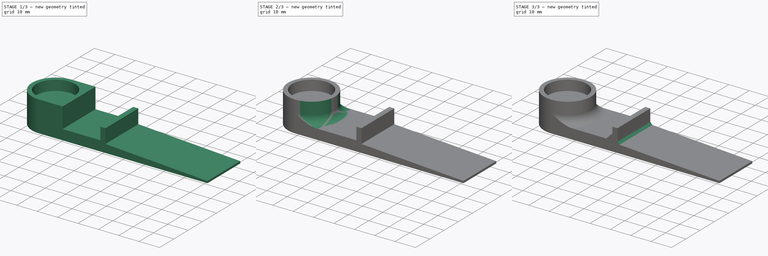
[diagram: build sequence overview — one tinted view per stage of 3, left to right]
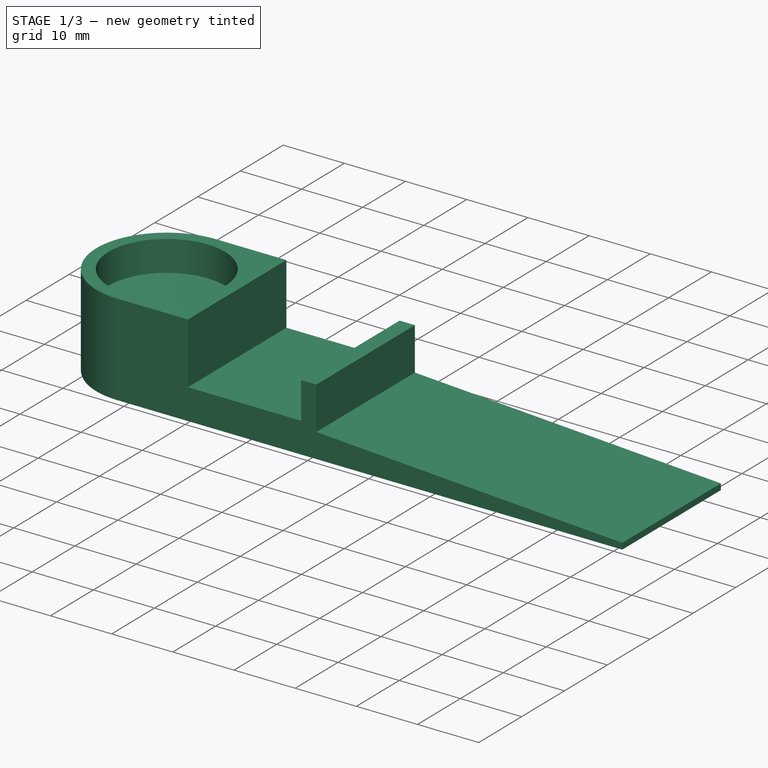
[diagram: stage 1 of 3 — iso view after this stage's code; geometry added in this stage tinted green]
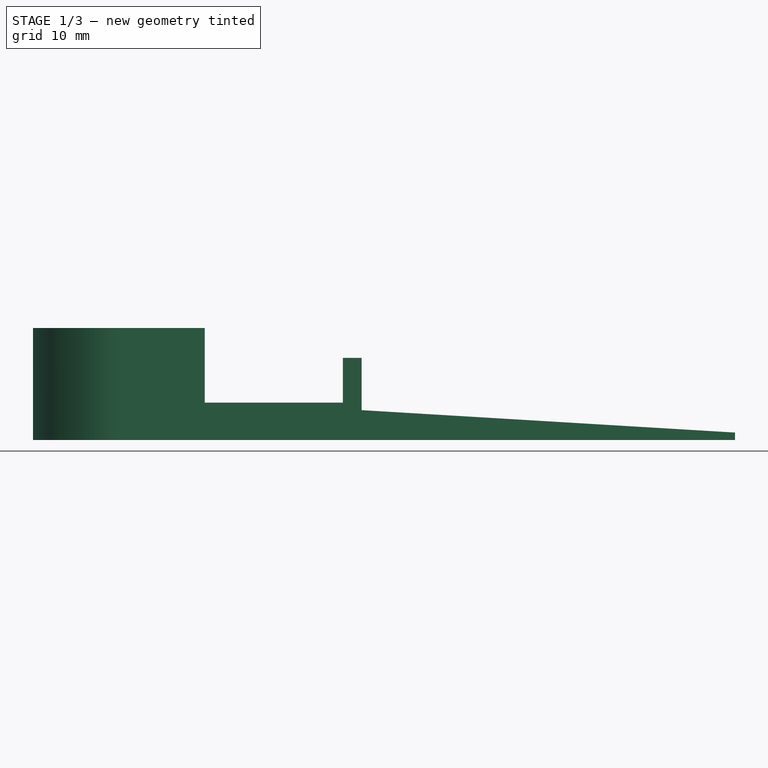
[diagram: stage 1 of 3 — front view after this stage's code; geometry added in this stage tinted green]
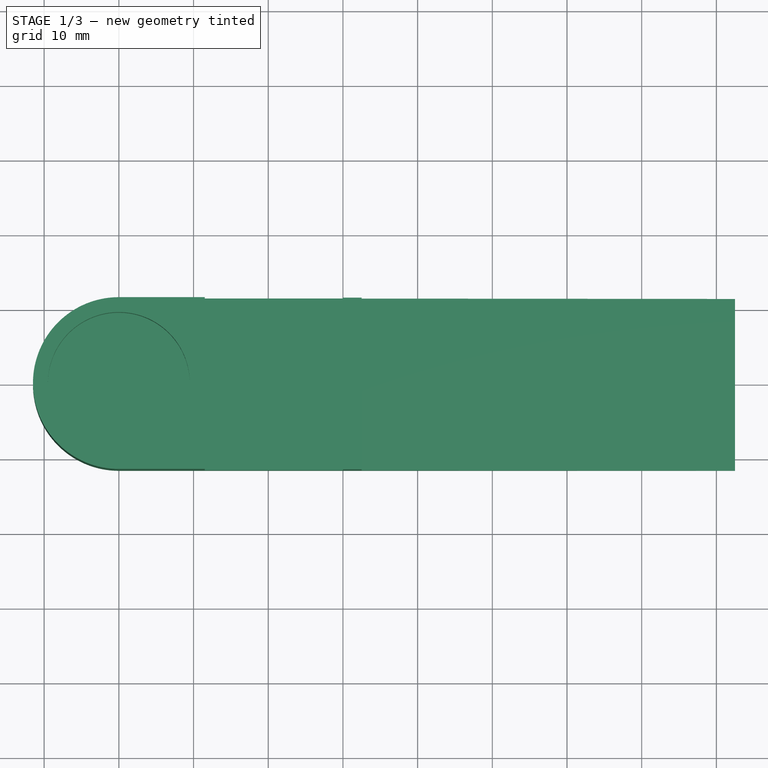
[diagram: stage 1 of 3 — top view after this stage's code; geometry added in this stage tinted green]
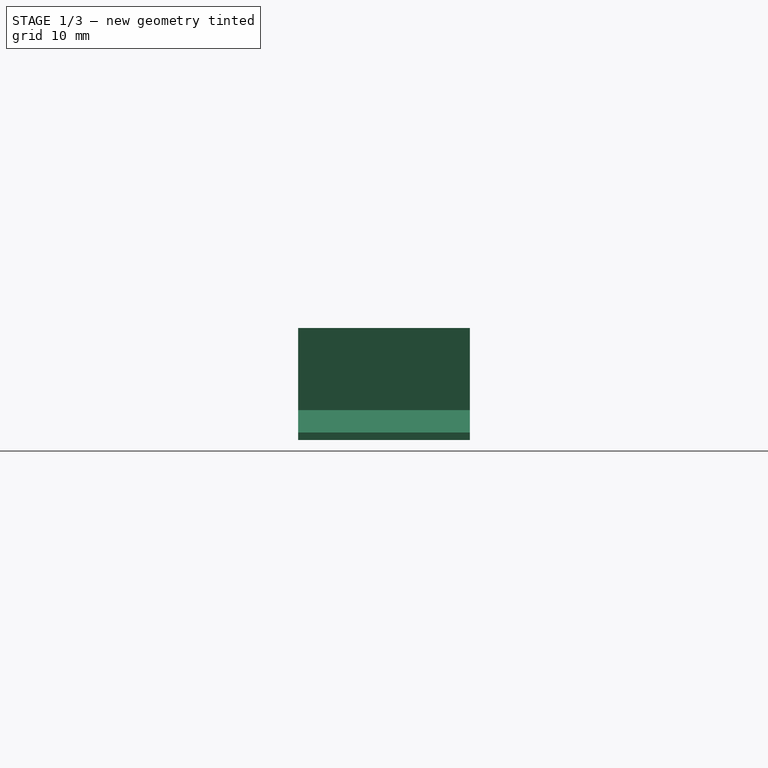
[diagram: stage 1 of 3 — right view after this stage's code; geometry added in this stage tinted green]
FCSTD DOCUMENT  (FreeCAD 0.19R)
Label: hue-holder
License: All rights reserved
LicenseURL: http://en.wikipedia.org/wiki/All_rights_reserved
objects: Sketcher::SketchObject×6, PartDesign::Pocket×4, PartDesign::Chamfer×2, PartDesign::Pad×1, Spreadsheet::Sheet×1, PartDesign::Plane×1, PartDesign::Fillet×1, PartDesign::Body×1
note: 24 computed .brp shape members not serialized (recipe doc carries the construction recipe); baked Part::Feature solids carry a one-line shape summary decoded from their .brp

FEATURE [Sketcher::SketchObject] Sketch
  FullyConstrained = true
  MapMode = 5
  Placement = pos=(0,0,0) rot=(1,0,0;1.5708rad)
  Support = -> [XZ_Plane001]
  expr: Constraints[16] = <<Params>>.FlangeMaxThick
  expr: Constraints[8] = <<Params>>.HolderHeight
  expr: Constraints[18] = <<Params>>.FlangeLength
  expr: Constraints[25] = <<Params>>.StopThickness
  expr: Constraints[24] = <<Params>>.VSeparation
  expr: Constraints[17] = <<Params>>.FlangeMinThick
  expr: Constraints[9] = <<Params>>.ExternalRadius
  expr: Constraints[27] = <<Params>>.InterThickness
  expr: Constraints[26] = <<Params>>.StopLength
  expr: Constraints[29] = <<Params>>.ExternalRadius
  sketch-geometry (10):
    g0: LineSegment StartX=-11.5 StartY=0 StartZ=0 EndX=82.5 EndY=0 EndZ=0
    g1: LineSegment StartX=82.5 StartY=0 StartZ=0 EndX=82.5 EndY=1 EndZ=0
    g2: LineSegment StartX=11.5 StartY=15 StartZ=0 EndX=-11.5 EndY=15 EndZ=0
    g3: LineSegment StartX=-11.5 StartY=15 StartZ=0 EndX=-11.5 EndY=0 EndZ=0
    g4: LineSegment StartX=11.5 StartY=15 StartZ=0 EndX=11.5 EndY=5 EndZ=0
    g5: LineSegment StartX=32.5 StartY=4 StartZ=0 EndX=82.5 EndY=1 EndZ=0
    g6: LineSegment StartX=32.5 StartY=4 StartZ=0 EndX=32.5 EndY=11 EndZ=0
    g7: LineSegment StartX=32.5 StartY=11 StartZ=0 EndX=30 EndY=11 EndZ=0
    g8: LineSegment StartX=11.5 StartY=5 StartZ=0 EndX=30 EndY=5 EndZ=0
    g9: LineSegment StartX=30 StartY=5 StartZ=0 EndX=30 EndY=11 EndZ=0
  constraints (30):
    c: Coincident(g0,g1)
    c: Coincident(g2,g3)
    c: Coincident(g3,g0)
    c: Horizontal(g0)
    c: Horizontal(g2)
    c: Vertical(g1)
    c: Vertical(g3)
    c: PointOnObject(g0,g-1)
    c: Distance(g3) = 15
    c: DistanceX(g0,g-1) = 11.5
    c: Vertical(g4)
    c: Coincident(g1,g5)
    c: Coincident(g6,g5)
    c: Vertical(g6)
    c: Coincident(g7,g6)
    c: Horizontal(g7)
    c: Distance(g5,g0) = 4
    c: DistanceY(g1,g1) = 1
    c: Distance(g5,g1) = 50
    c: Horizontal(g8)
    c: Coincident(g2,g4)
    c: Coincident(g9,g8)
    c: Coincident(g9,g7)
    c: Vertical(g9)
    c: Distance(g-1,g9) = 30
    c: Distance(g7) = 2.5
    c: DistanceY(g6,g6) = 7
    c: Distance(g-1,g8) = 5
    c: Coincident(g4,g8)
    c: Distance(g-1,g4) = 11.5
FEATURE [PartDesign::Pad] Pad
  Direction = (1,1,1)
  Length = 23
  Length2 = 100
  Midplane = true
  Placement = pos=(0,0,0) rot=(1,0,0;1.5708rad)
  Profile = -> Sketch
  Type = 0
  expr: Length = <<Params>>.ExternalRadius * 2
FEATURE [Spreadsheet::Sheet] Spreadsheet  label="Params"
  cells = A2=ExternalRadius; B2(ExternalRadius)=11.5; A3=InternalRadius; B3(InternalRadius)=9.5; A4=VSeparation; B4(VSeparation)=30; A5=FlangeLength; B5(FlangeLength)=50; A6=FlangeMinThick; B6(FlangeMinThick)=1; A7=FlangeMaxThick; B7(FlangeMaxThick)=4; A8=StopThickness; B8(StopThickness)=2.5; A9=StopLength; B9(StopLength)=7; A10=InterThickness; B10(InterThickness)=5; A11=HolderHeight; B11(HolderHeight)=15; A12=HolderOverlap; B12(HolderOverlap)=5
FEATURE [Sketcher::SketchObject] Sketch001
  FullyConstrained = false
  MapMode = 5
  Support = -> [XY_Plane001]
  expr: Constraints[7] = <<Params>>.ExternalRadius
  expr: Constraints[8] = <<Params>>.ExternalRadius * 2
  sketch-geometry (4):
    g0: ArcOfCircle CenterX=0 CenterY=0 CenterZ=0 NormalX=0 NormalY=0 NormalZ=1 AngleXU=0 Radius=11.5 StartAngle=1.5739 EndAngle=4.70928
    g1: ArcOfCircle CenterX=0 CenterY=0 CenterZ=0 NormalX=0 NormalY=0 NormalZ=1 AngleXU=0 Radius=23 StartAngle=1.57235 EndAngle=4.71083
    g2: LineSegment StartX=-0.0357469 StartY=23 StartZ=0 EndX=-0.0357469 EndY=11.4999 EndZ=0
    g3: LineSegment StartX=-0.0357469 StartY=-11.4999 StartZ=0 EndX=-0.0357469 EndY=-23 EndZ=0
  constraints (10):
    c: Coincident(g1,g0)
    c: Vertical(g2)
    c: Coincident(g1,g2)
    c: Coincident(g1,g3)
    c: Coincident(g2,g0)
    c: Coincident(g3,g0)
    c: Tangent(g2,g3)
    c: Radius(g0) = 11.5
    c: Radius(g1) = 23
    c: Coincident(g0,g-1)
FEATURE [PartDesign::Pocket] Pocket
  BaseFeature = -> Pad
  Length = 15
  Length2 = 100
  Placement = pos=(0,0,0) rot=(1,0,0;1.5708rad)
  Profile = -> Sketch001
  Reversed = true
  Type = 0
  expr: Length = <<Params>>.HolderHeight
FEATURE [PartDesign::Plane] DatumPlane
  Length = 122.163
  MapMode = 5
  Placement = pos=(0,-3.3e-15,15) rot=(0,0,1;3.14159rad)
  ResizeMode = 0
  Support = -> [Pocket]
  Width = 64.6629
FEATURE [Sketcher::SketchObject] Sketch003
  FullyConstrained = true
  MapMode = 5
  Placement = pos=(0,-3.3e-15,15) rot=(0,0,1;3.14159rad)
  Support = -> [DatumPlane]
  expr: Constraints[1] = <<Params>>.InternalRadius
  sketch-geometry (1):
    g0: Circle CenterX=0 CenterY=0 CenterZ=0 NormalX=0 NormalY=0 NormalZ=1 AngleXU=0 Radius=9.5
  constraints (2):
    c: Coincident(g0,g-1)
    c: Radius(g0) = 9.5
FEATURE [PartDesign::Pocket] Pocket001
  BaseFeature = -> Pocket
  Length = 5
  Length2 = 100
  Placement = pos=(0,0,0) rot=(1,0,0;1.5708rad)
  Profile = -> Sketch003
  Type = 0
  expr: Length = <<Params>>.HolderOverlap
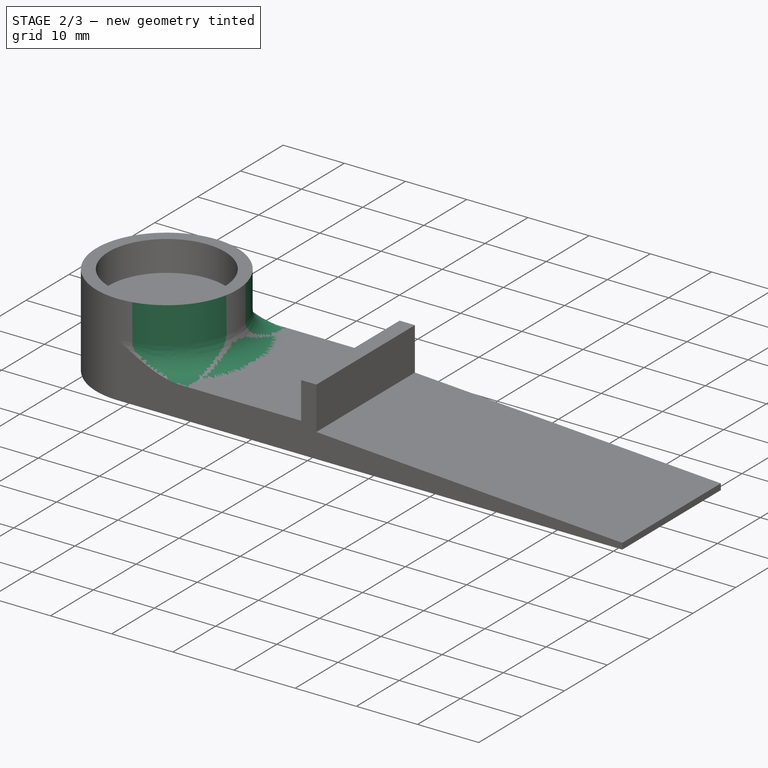
[diagram: stage 2 of 3 — iso view after this stage's code; geometry added in this stage tinted green]
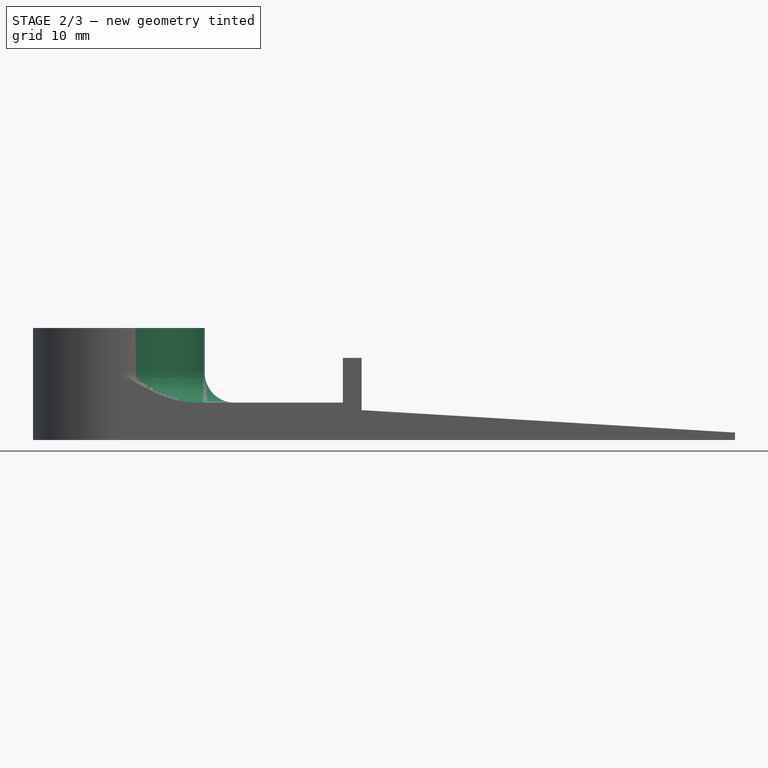
[diagram: stage 2 of 3 — front view after this stage's code; geometry added in this stage tinted green]
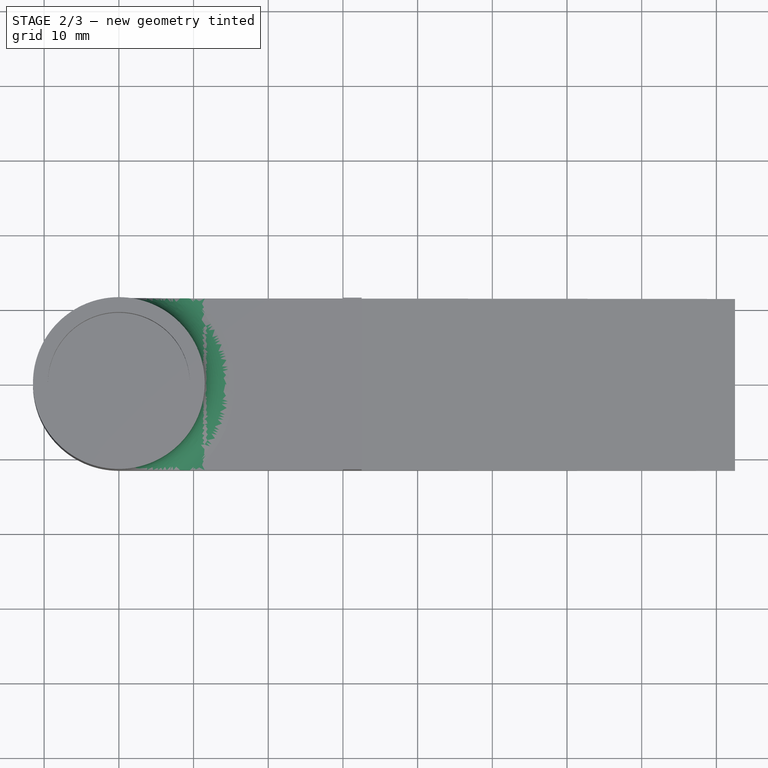
[diagram: stage 2 of 3 — top view after this stage's code; geometry added in this stage tinted green]
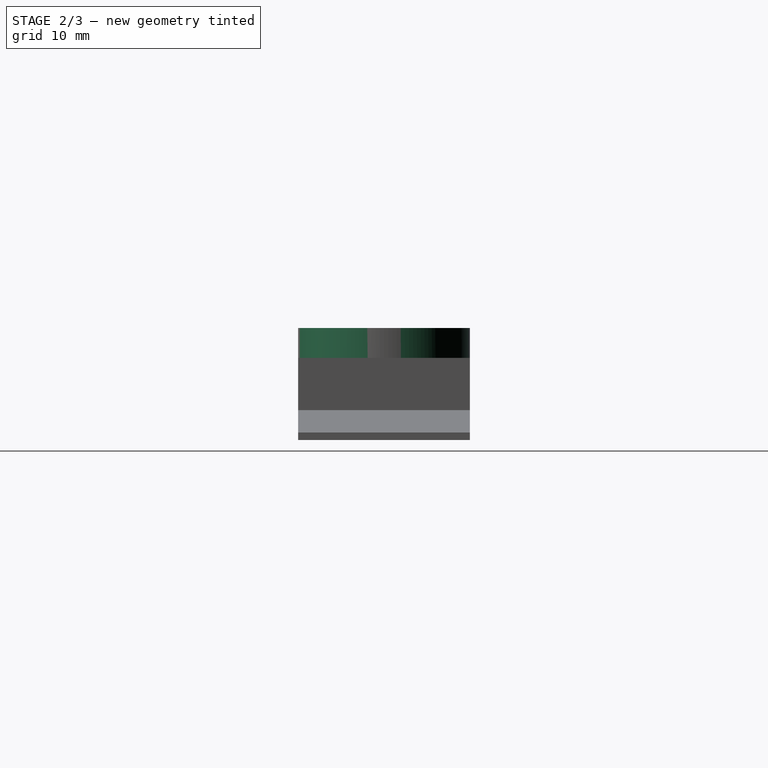
[diagram: stage 2 of 3 — right view after this stage's code; geometry added in this stage tinted green]
FEATURE [Sketcher::SketchObject] Sketch004
  FullyConstrained = true
  MapMode = 5
  Placement = pos=(0,-1.1e-15,5) rot=(0,0,1;3.14159rad)
  Support = -> [Pocket001]
FEATURE [Sketcher::SketchObject] Sketch005
  FullyConstrained = true
  MapMode = 5
  Placement = pos=(0,-3.3e-15,15) rot=(0,0,1;3.14159rad)
  Support = -> [Pocket001]
  expr: Constraints[2] = <<Params>>.ExternalRadius
  expr: Constraints[3] = <<Params>>.ExternalRadius * 2
  sketch-geometry (4):
    g0: ArcOfCircle CenterX=0 CenterY=0 CenterZ=0 NormalX=0 NormalY=0 NormalZ=1 AngleXU=0 Radius=11.5 StartAngle=1.5708 EndAngle=4.71239
    g1: ArcOfCircle CenterX=0 CenterY=0 CenterZ=0 NormalX=0 NormalY=0 NormalZ=1 AngleXU=0 Radius=23 StartAngle=1.5708 EndAngle=4.71239
    g2: LineSegment StartX=1.4e-15 StartY=23 StartZ=0 EndX=1.4e-15 EndY=11.5 EndZ=0
    g3: LineSegment StartX=-2.1e-15 StartY=-11.5 StartZ=0 EndX=-4.2e-15 EndY=-23 EndZ=0
  constraints (11):
    c: Coincident(g0,g-1)
    c: Coincident(g1,g0)
    c: Radius(g0) = 11.5
    c: Radius(g1) = 23
    c: Vertical(g2)
    c: Coincident(g1,g2)
    c: Coincident(g1,g3)
    c: Coincident(g2,g0)
    c: Coincident(g3,g0)
    c: Tangent(g2,g3)
    c: DistanceX(g0,g1) = 0
FEATURE [PartDesign::Pocket] Pocket002
  BaseFeature = -> Pocket001
  Length = 10
  Length2 = 100
  Placement = pos=(0,0,0) rot=(1,0,0;1.5708rad)
  Profile = -> Sketch005
  Type = 3
  UpToFace = -> Pocket001 [Face10]
  expr: Length = <<Params>>.HolderHeight - <<Params>>.InterThickness
FEATURE [PartDesign::Fillet] Fillet
  Base = -> Pocket002 [Edge40,Edge41]
  BaseFeature = -> Pocket002
  Placement = pos=(0,0,0) rot=(1,0,0;1.5708rad)
  Radius = 4
  SupportTransform = false
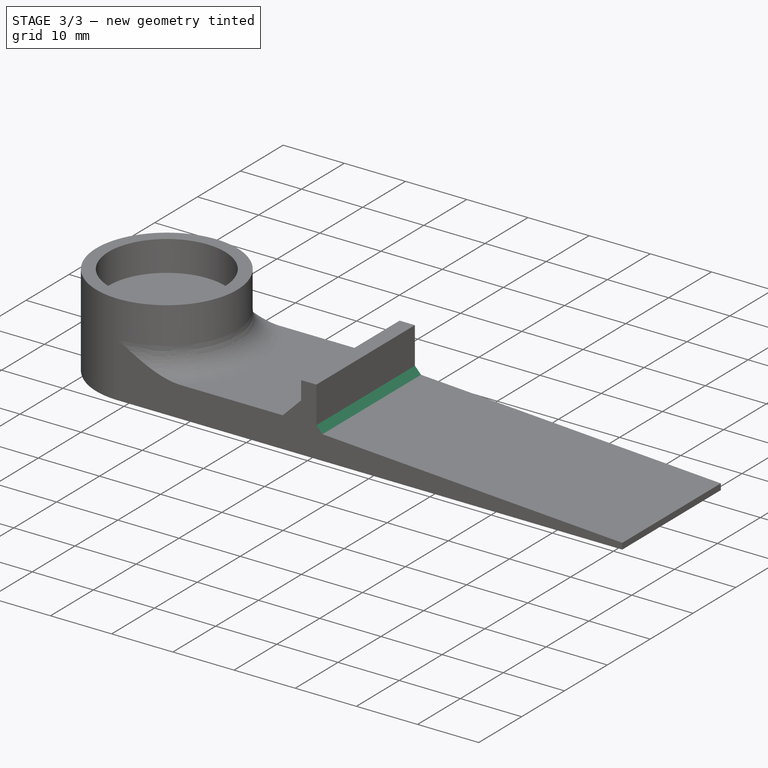
[diagram: stage 3 of 3 — iso view after this stage's code; geometry added in this stage tinted green]
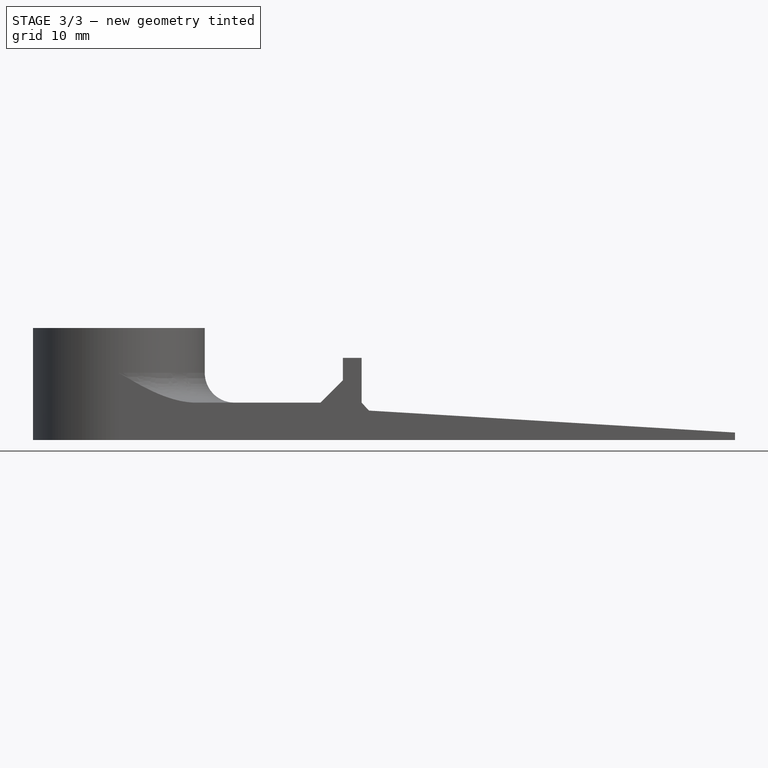
[diagram: stage 3 of 3 — front view after this stage's code; geometry added in this stage tinted green]
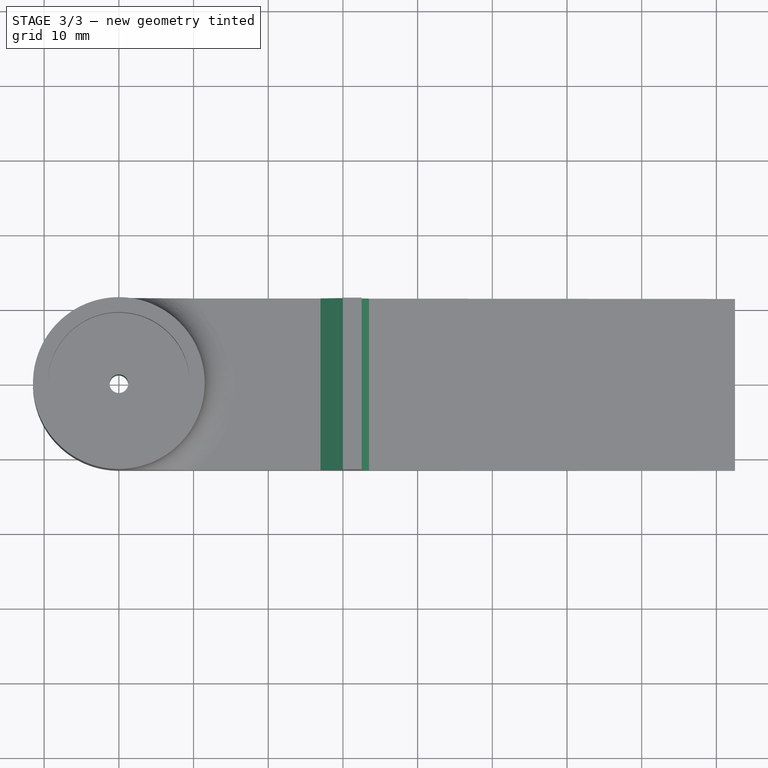
[diagram: stage 3 of 3 — top view after this stage's code; geometry added in this stage tinted green]
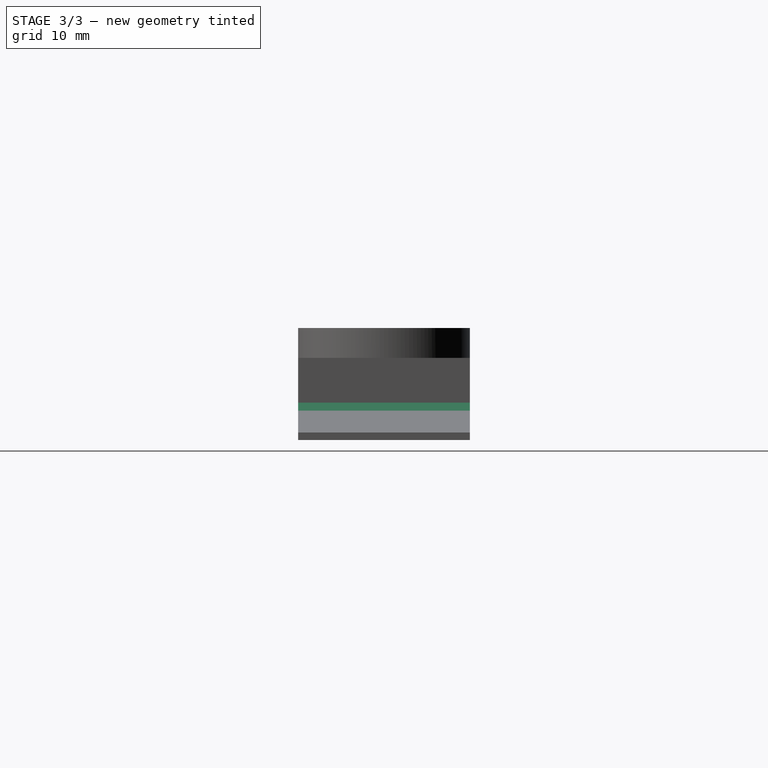
[diagram: stage 3 of 3 — right view after this stage's code; geometry added in this stage tinted green]
FEATURE [PartDesign::Chamfer] Chamfer
  Angle = 45
  Base = -> Fillet [Edge41]
  BaseFeature = -> Fillet
  ChamferType = 0
  FlipDirection = false
  Placement = pos=(0,0,0) rot=(1,0,0;1.5708rad)
  Size = 3
  Size2 = 1
  SupportTransform = false
FEATURE [PartDesign::Chamfer] Chamfer001
  Angle = 45
  Base = -> Chamfer [Edge32]
  BaseFeature = -> Chamfer
  ChamferType = 0
  FlipDirection = false
  Placement = pos=(0,0,0) rot=(1,0,0;1.5708rad)
  Size = 1
  Size2 = 1
  SupportTransform = false
FEATURE [Sketcher::SketchObject] Sketch006
  FullyConstrained = true
  MapMode = 5
  Support = -> [XY_Plane001]
  sketch-geometry (1):
    g0: Circle CenterX=0 CenterY=0 CenterZ=0 NormalX=0 NormalY=0 NormalZ=1 AngleXU=0 Radius=1.25
  constraints (2):
    c: Coincident(g0,g-1)
    c: Radius(g0) = 1.25
FEATURE [PartDesign::Pocket] Pocket003
  BaseFeature = -> Chamfer001
  Length = 30
  Length2 = 100
  Placement = pos=(0,0,0) rot=(1,0,0;1.5708rad)
  Profile = -> Sketch006
  Reversed = true
  Type = 0
FEATURE [PartDesign::Body] Body
  Group = -> [Sketch,Pad,Sketch001,Pocket,DatumPlane,Sketch003,Pocket001,Sketch004,Sketch005,Pocket002,Fillet,Chamfer,Chamfer001,Sketch006,Pocket003]
  Origin = -> Origin001
  Tip = -> Pocket003
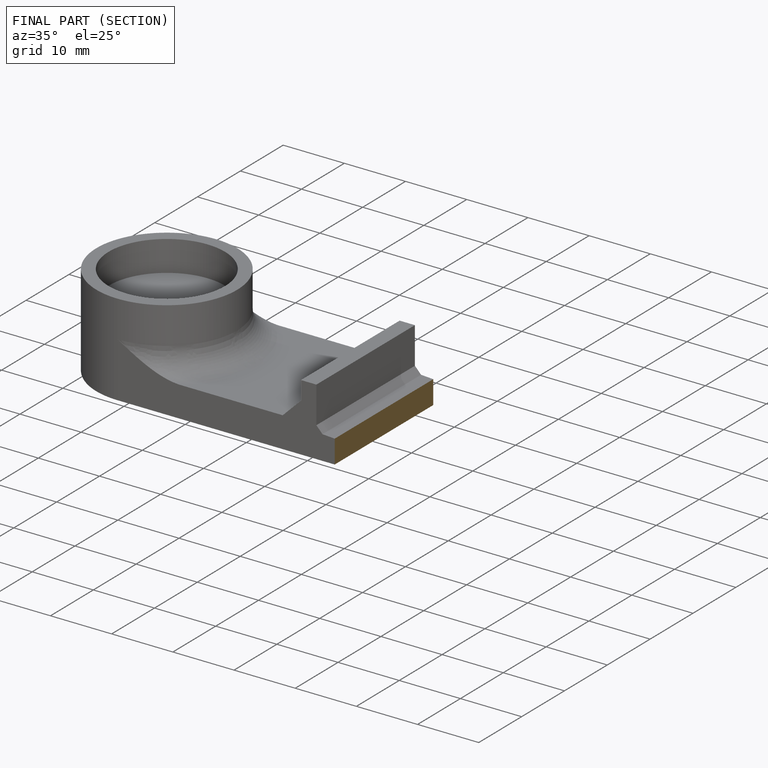
[diagram: finished part — half-section view (interior)]
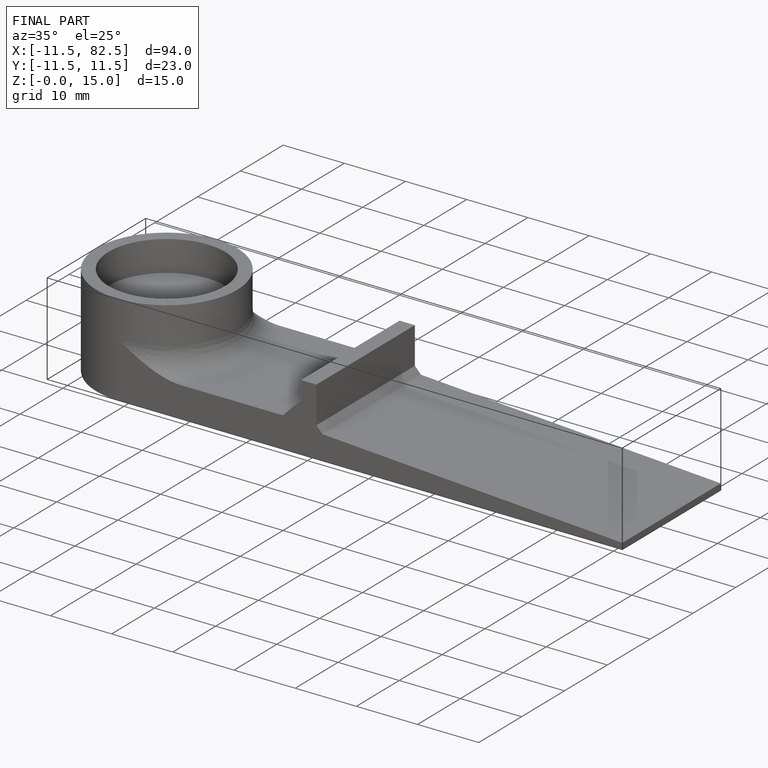
[diagram: finished part — iso view with bounding-box wireframe]
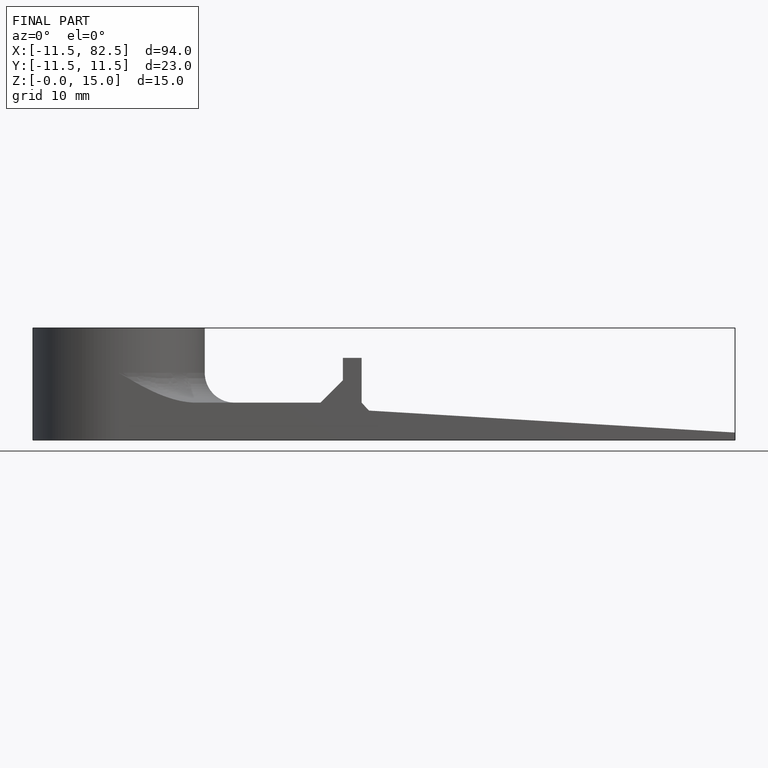
[diagram: finished part — front view with bounding-box wireframe]
